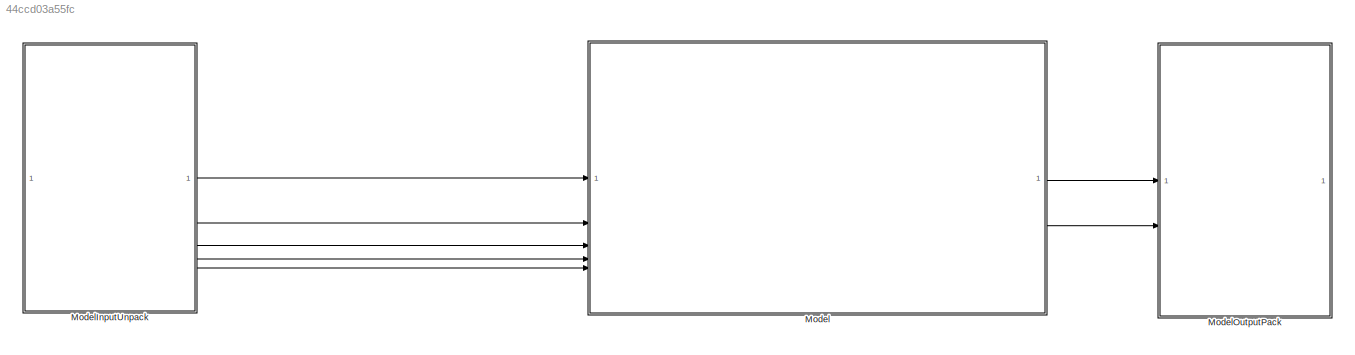
MODEL slx_44ccd03a55fc
KIND model
BLOCK [SubSystem] Model
  PartitionName = CiruitSubsystem
  PortSchema = {"entries":[{"content":{"sides":[{"content":{"connectorIds":["In1","In2","In3","In5","In4"]},"type":"ConnectorPlacement.EquallySpacedRectSide","uuid":"5e4423b7-0677-4123-82e8-52544a0245db"},{"content":{"connectorIds":["Out1","Out2"],"side":"RIGHT"},"type":"ConnectorPlacement.EquallySpacedRectSide","uuid":"94cda0c5-634b-427a-a30c-cf0e3dec8d4f"},{"content":{"side":"TOP"},"type":"ConnectorPlacement.E...<+253ch>
  ReferencedSubsystem = Battery
  ScheduleAs = Periodic partition
  SystemSampleTime = 0.005
  TreatAsAtomicUnit = on
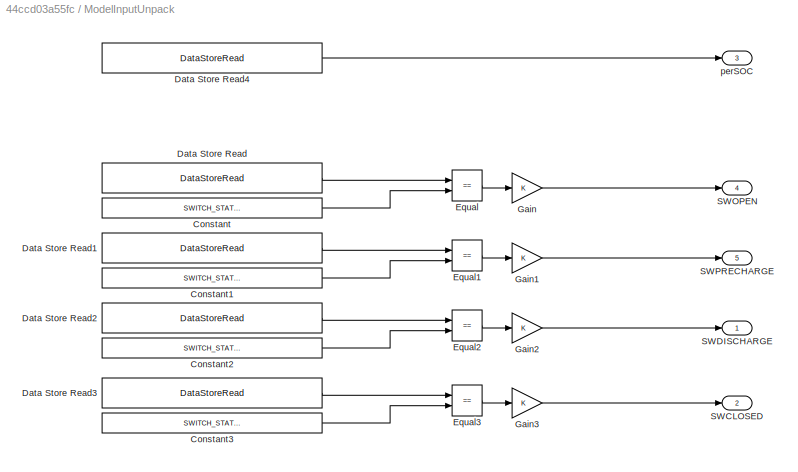
BLOCK [SubSystem] ModelInputUnpack
  PartitionName = ModelInputUnpack
  Priority = 1
  ScheduleAs = Periodic partition
  SystemSampleTime = 0.005
  TreatAsAtomicUnit = on
BLOCK [Constant] ModelInputUnpack/Constant
  Value = SWITCH_STATE_e.SWITCH_OPEN
BLOCK [Constant] ModelInputUnpack/Constant1
  Value = SWITCH_STATE_e.SWITCH_PRECHARGE
BLOCK [Constant] ModelInputUnpack/Constant2
  Value = SWITCH_STATE_e.SWITCH_DISCHARGE
BLOCK [Constant] ModelInputUnpack/Constant3
  Value = SWITCH_STATE_e.SWITCH_CLOSED
BLOCK [DataStoreRead] ModelInputUnpack/Data Store Read
  DataStoreElements = SMKACADEMY.electrical.switch_state
  DataStoreName = SMKACADEMY
  IndexOptions = Index vector (dialog)
  Indices = 1
  OutputSizes = 1
BLOCK [DataStoreRead] ModelInputUnpack/Data Store Read1
  DataStoreElements = SMKACADEMY.electrical.switch_state
  DataStoreName = SMKACADEMY
  IndexOptions = Index vector (dialog)
  Indices = 1
  OutputSizes = 1
BLOCK [DataStoreRead] ModelInputUnpack/Data Store Read2
  DataStoreElements = SMKACADEMY.electrical.switch_state
  DataStoreName = SMKACADEMY
  IndexOptions = Index vector (dialog)
  Indices = 1
  OutputSizes = 1
BLOCK [DataStoreRead] ModelInputUnpack/Data Store Read3
  DataStoreElements = SMKACADEMY.electrical.switch_state
  DataStoreName = SMKACADEMY
  IndexOptions = Index vector (dialog)
  Indices = 1
  OutputSizes = 1
BLOCK [DataStoreRead] ModelInputUnpack/Data Store Read4
  DataStoreElements = SMKACADEMY.electrical.perSOC
  DataStoreName = SMKACADEMY
  IndexOptions = Index vector (dialog)
  Indices = 1
  OutputSizes = 1
BLOCK [RelationalOperator] ModelInputUnpack/Equal
  InputSameDT = off
  Operator = ==
  OutDataTypeStr = boolean
  RndMeth = Simplest
BLOCK [RelationalOperator] ModelInputUnpack/Equal1
  InputSameDT = off
  Operator = ==
  OutDataTypeStr = boolean
  RndMeth = Simplest
BLOCK [RelationalOperator] ModelInputUnpack/Equal2
  InputSameDT = off
  Operator = ==
  OutDataTypeStr = boolean
  RndMeth = Simplest
BLOCK [RelationalOperator] ModelInputUnpack/Equal3
  InputSameDT = off
  Operator = ==
  OutDataTypeStr = boolean
  RndMeth = Simplest
BLOCK [Gain] ModelInputUnpack/Gain
  OutDataTypeStr = single
BLOCK [Gain] ModelInputUnpack/Gain1
  OutDataTypeStr = single
BLOCK [Gain] ModelInputUnpack/Gain2
  OutDataTypeStr = single
BLOCK [Gain] ModelInputUnpack/Gain3
  OutDataTypeStr = single
BLOCK [Outport] ModelInputUnpack/SWCLOSED
  Port = 2
BLOCK [Outport] ModelInputUnpack/SWDISCHARGE
BLOCK [Outport] ModelInputUnpack/SWOPEN
  Port = 4
BLOCK [Outport] ModelInputUnpack/SWPRECHARGE
  Port = 5
BLOCK [Outport] ModelInputUnpack/perSOC
  Port = 3
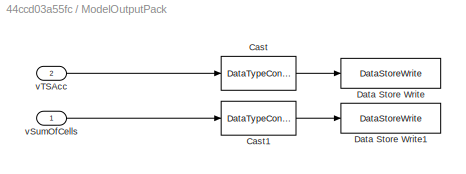
BLOCK [SubSystem] ModelOutputPack
  PartitionName = ModelOutputPack
  Priority = 3
  ScheduleAs = Periodic partition
  SystemSampleTime = 0.005
  TreatAsAtomicUnit = on
BLOCK [DataTypeConversion] ModelOutputPack/Cast
  RndMeth = Floor
  SaturateOnIntegerOverflow = off
BLOCK [DataTypeConversion] ModelOutputPack/Cast1
  RndMeth = Floor
  SaturateOnIntegerOverflow = off
BLOCK [DataStoreWrite] ModelOutputPack/Data Store Write
  DataStoreElements = SMKACADEMY.electrical.vTSAcc
  DataStoreName = SMKACADEMY
  IndexOptions = Index vector (dialog)
  Indices = 1
  OutputSizes = 1
BLOCK [DataStoreWrite] ModelOutputPack/Data Store Write1
  DataStoreElements = SMKACADEMY.electrical.vSumOfCells
  DataStoreName = SMKACADEMY
  IndexOptions = Index vector (dialog)
  Indices = 1
  OutputSizes = 1
BLOCK [Inport] ModelOutputPack/vSumOfCells
BLOCK [Inport] ModelOutputPack/vTSAcc
  Port = 2
LINE Model:1 -> ModelOutputPack:1
LINE Model:2 -> ModelOutputPack:2
LINE ModelInputUnpack/Constant1:1 -> ModelInputUnpack/Equal1:2
LINE ModelInputUnpack/Constant2:1 -> ModelInputUnpack/Equal2:2
LINE ModelInputUnpack/Constant3:1 -> ModelInputUnpack/Equal3:2
LINE ModelInputUnpack/Constant:1 -> ModelInputUnpack/Equal:2
LINE ModelInputUnpack/Data Store Read1:1 -> ModelInputUnpack/Equal1:1
LINE ModelInputUnpack/Data Store Read2:1 -> ModelInputUnpack/Equal2:1
LINE ModelInputUnpack/Data Store Read3:1 -> ModelInputUnpack/Equal3:1
LINE ModelInputUnpack/Data Store Read4:1 -> ModelInputUnpack/perSOC:1
LINE ModelInputUnpack/Data Store Read:1 -> ModelInputUnpack/Equal:1
LINE ModelInputUnpack/Equal1:1 -> ModelInputUnpack/Gain1:1
LINE ModelInputUnpack/Equal2:1 -> ModelInputUnpack/Gain2:1
LINE ModelInputUnpack/Equal3:1 -> ModelInputUnpack/Gain3:1
LINE ModelInputUnpack/Equal:1 -> ModelInputUnpack/Gain:1
LINE ModelInputUnpack/Gain1:1 -> ModelInputUnpack/SWPRECHARGE:1
LINE ModelInputUnpack/Gain2:1 -> ModelInputUnpack/SWDISCHARGE:1
LINE ModelInputUnpack/Gain3:1 -> ModelInputUnpack/SWCLOSED:1
LINE ModelInputUnpack/Gain:1 -> ModelInputUnpack/SWOPEN:1
LINE ModelInputUnpack:1 -> Model:1
LINE ModelInputUnpack:2 -> Model:2
LINE ModelInputUnpack:3 -> Model:3
LINE ModelInputUnpack:4 -> Model:5
LINE ModelInputUnpack:5 -> Model:4
LINE ModelOutputPack/Cast1:1 -> ModelOutputPack/Data Store Write1:1
LINE ModelOutputPack/Cast:1 -> ModelOutputPack/Data Store Write:1
LINE ModelOutputPack/vSumOfCells:1 -> ModelOutputPack/Cast1:1
LINE ModelOutputPack/vTSAcc:1 -> ModelOutputPack/Cast:1
